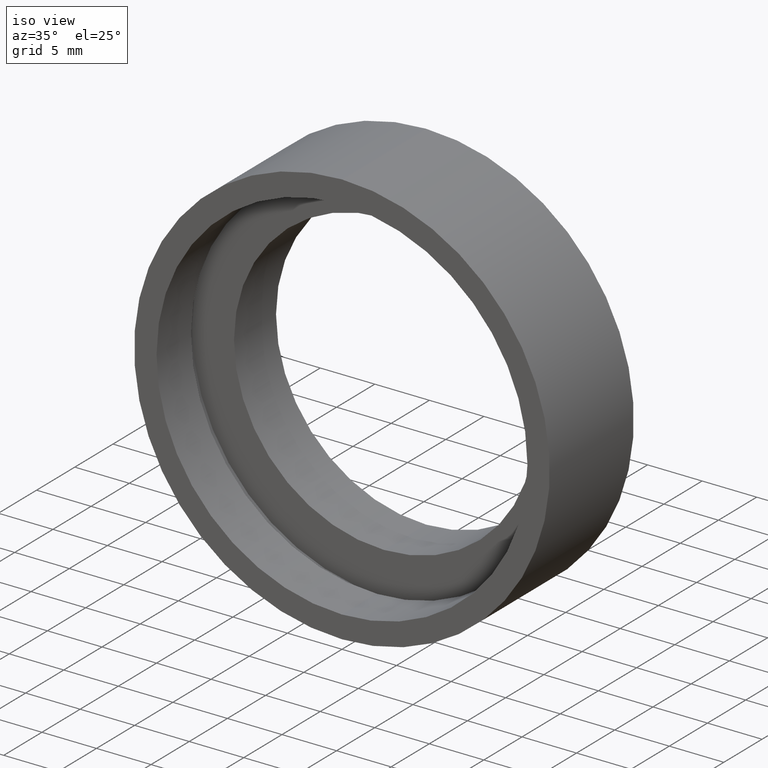
[diagram: clean part render]
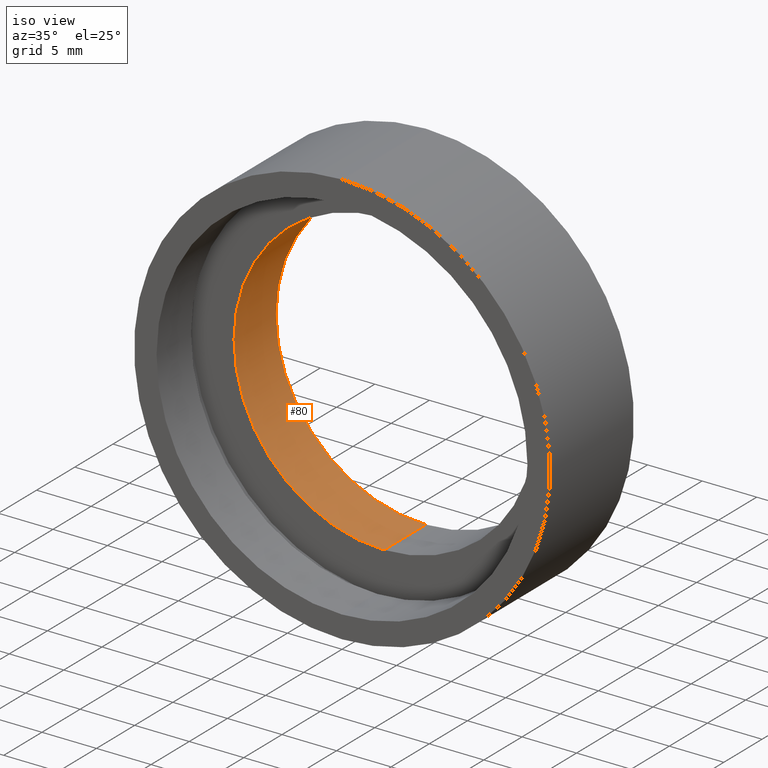
[diagram: same view with one face highlighted and labeled with its STEP entity id]
A machine part, iso view. The second image highlights one B-rep face of the part: STEP entity #80.
In plain terms, the highlighted cylindrical surface (partial cylindrical patch) has radius 13.75 mm, axis along (-0, 1, -0).
Its self-contained STEP definition (entity closure, byte-faithful):
#2 = CIRCLE ( 'NONE', #152, 13.75000000000000700 ) ;
#3 = EDGE_LOOP ( 'NONE', ( #84, #98, #19, #55 ) ) ;
#11 = DIRECTION ( 'NONE',  ( -0.0000000000000000000, 1.000000000000000000, -0.0000000000000000000 ) ) ;
#19 = ORIENTED_EDGE ( 'NONE', *, *, #299, .T. ) ;
#26 = CARTESIAN_POINT ( 'NONE',  ( 0.0000000000000000000, 10.99999999999999600, 0.0000000000000000000 ) ) ;
#55 = ORIENTED_EDGE ( 'NONE', *, *, #278, .F. ) ;
#57 = CARTESIAN_POINT ( 'NONE',  ( 1.683889348827611800E-015, 10.99999999999999600, -13.75000000000000900 ) ) ;
#58 = VERTEX_POINT ( 'NONE', #57 ) ;
#67 = CYLINDRICAL_SURFACE ( 'NONE', #317, 13.75000000000000500 ) ;
#80 = ADVANCED_FACE ( 'NONE', ( #158 ), #67, .F. ) ;
#84 = ORIENTED_EDGE ( 'NONE', *, *, #186, .F. ) ;
#90 = DIRECTION ( 'NONE',  ( 0.0000000000000000000, 0.0000000000000000000, 1.000000000000000000 ) ) ;
#96 = DIRECTION ( 'NONE',  ( -0.0000000000000000000, 1.000000000000000000, -0.0000000000000000000 ) ) ;
#98 = ORIENTED_EDGE ( 'NONE', *, *, #350, .T. ) ;
#114 = VECTOR ( 'NONE', #339, 1000.000000000000000 ) ;
#116 = DIRECTION ( 'NONE',  ( 0.0000000000000000000, 0.0000000000000000000, 1.000000000000000000 ) ) ;
#120 = AXIS2_PLACEMENT_3D ( 'NONE', #356, #310, #90 ) ;
#131 = LINE ( 'NONE', #282, #327 ) ;
#137 = VERTEX_POINT ( 'NONE', #298 ) ;
#152 = AXIS2_PLACEMENT_3D ( 'NONE', #26, #11, #116 ) ;
#158 = FACE_OUTER_BOUND ( 'NONE', #3, .T. ) ;
#186 = EDGE_CURVE ( 'NONE', #137, #337, #318, .T. ) ;
#193 = CARTESIAN_POINT ( 'NONE',  ( 1.683889348827611400E-015, 60.02082041425541100, -13.75000000000000500 ) ) ;
#269 = VERTEX_POINT ( 'NONE', #375 ) ;
#278 = EDGE_CURVE ( 'NONE', #337, #269, #131, .T. ) ;
#282 = CARTESIAN_POINT ( 'NONE',  ( 0.0000000000000000000, 60.02082041425541100, 13.75000000000000500 ) ) ;
#298 = CARTESIAN_POINT ( 'NONE',  ( 1.683889348827611400E-015, 5.499999999999998200, -13.75000000000000500 ) ) ;
#299 = EDGE_CURVE ( 'NONE', #58, #269, #2, .T. ) ;
#310 = DIRECTION ( 'NONE',  ( -0.0000000000000000000, 1.000000000000000000, -0.0000000000000000000 ) ) ;
#316 = LINE ( 'NONE', #193, #114 ) ;
#317 = AXIS2_PLACEMENT_3D ( 'NONE', #423, #96, #388 ) ;
#318 = CIRCLE ( 'NONE', #120, 13.75000000000000500 ) ;
#327 = VECTOR ( 'NONE', #377, 1000.000000000000000 ) ;
#337 = VERTEX_POINT ( 'NONE', #361 ) ;
#339 = DIRECTION ( 'NONE',  ( -0.0000000000000000000, 1.000000000000000000, -0.0000000000000000000 ) ) ;
#350 = EDGE_CURVE ( 'NONE', #137, #58, #316, .T. ) ;
#356 = CARTESIAN_POINT ( 'NONE',  ( 0.0000000000000000000, 5.499999999999998200, 0.0000000000000000000 ) ) ;
#361 = CARTESIAN_POINT ( 'NONE',  ( 0.0000000000000000000, 5.499999999999998200, 13.75000000000000500 ) ) ;
#375 = CARTESIAN_POINT ( 'NONE',  ( 0.0000000000000000000, 10.99999999999999600, 13.75000000000000700 ) ) ;
#377 = DIRECTION ( 'NONE',  ( -0.0000000000000000000, 1.000000000000000000, -0.0000000000000000000 ) ) ;
#388 = DIRECTION ( 'NONE',  ( 0.0000000000000000000, 0.0000000000000000000, 1.000000000000000000 ) ) ;
#423 = CARTESIAN_POINT ( 'NONE',  ( 0.0000000000000000000, 60.02082041425541100, 0.0000000000000000000 ) ) ;